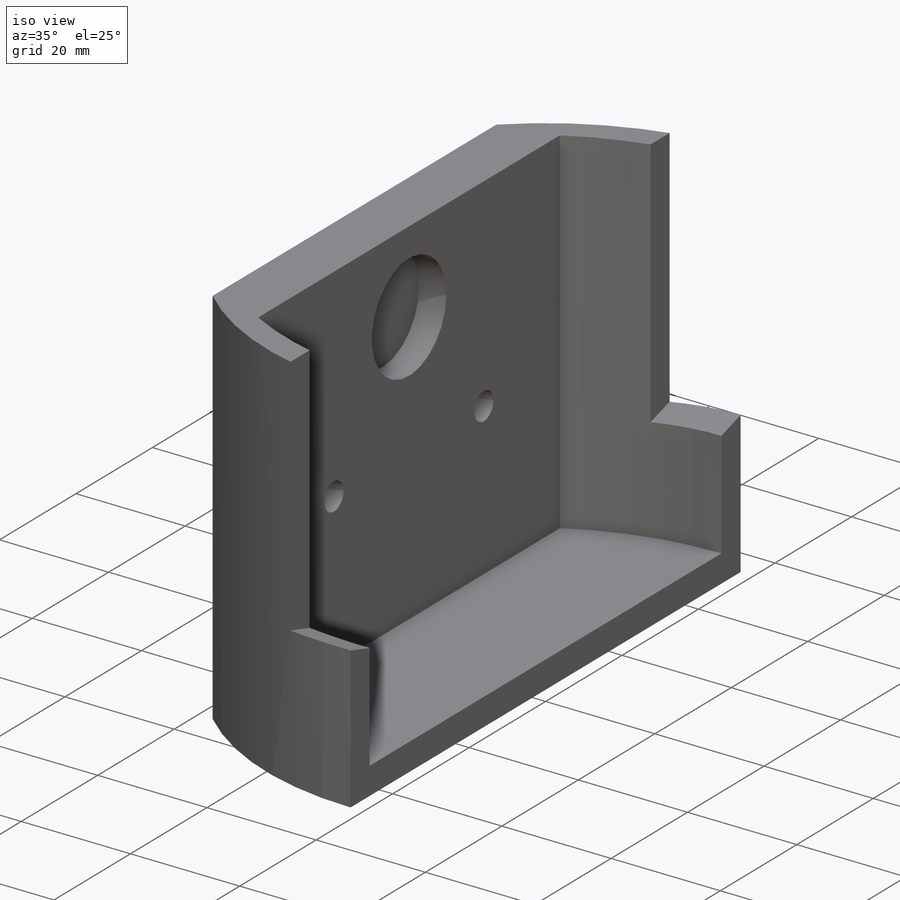
[diagram: iso view]
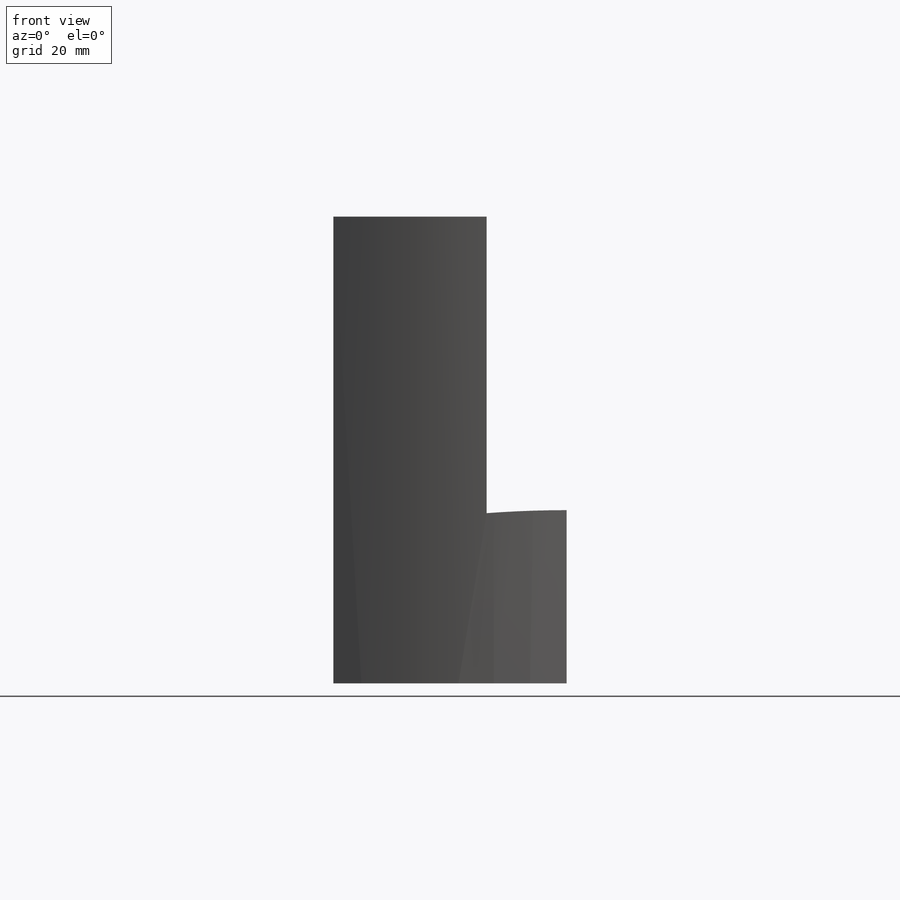
[diagram: front view]
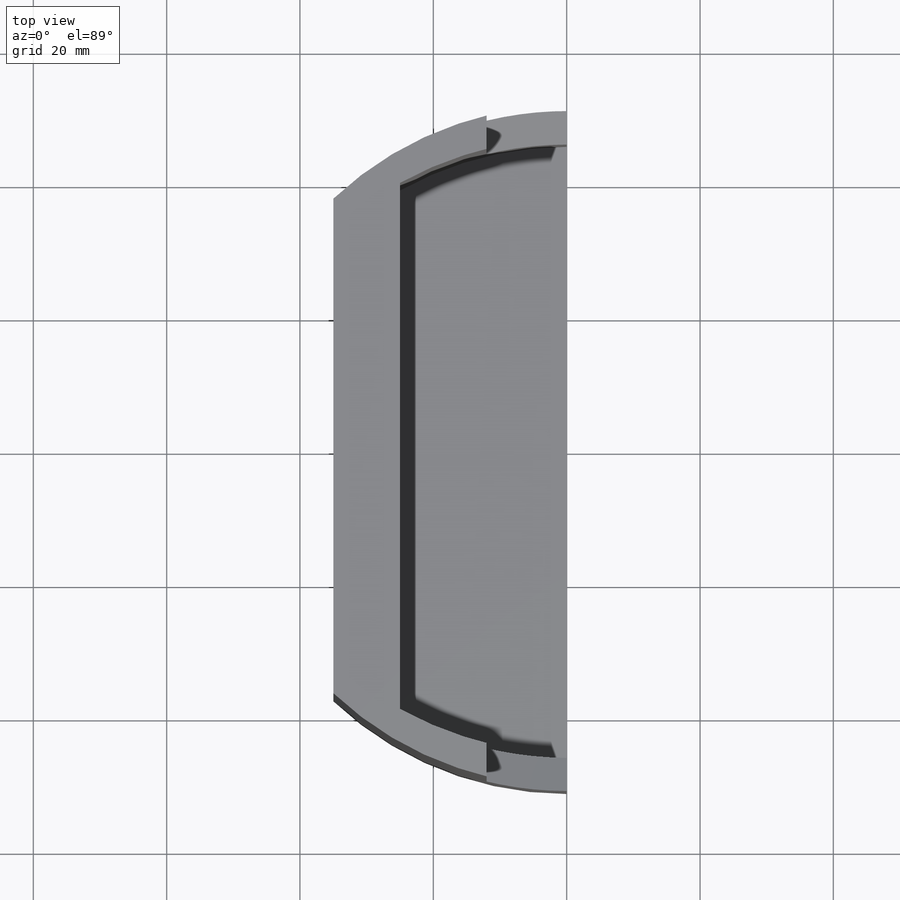
[diagram: top view]
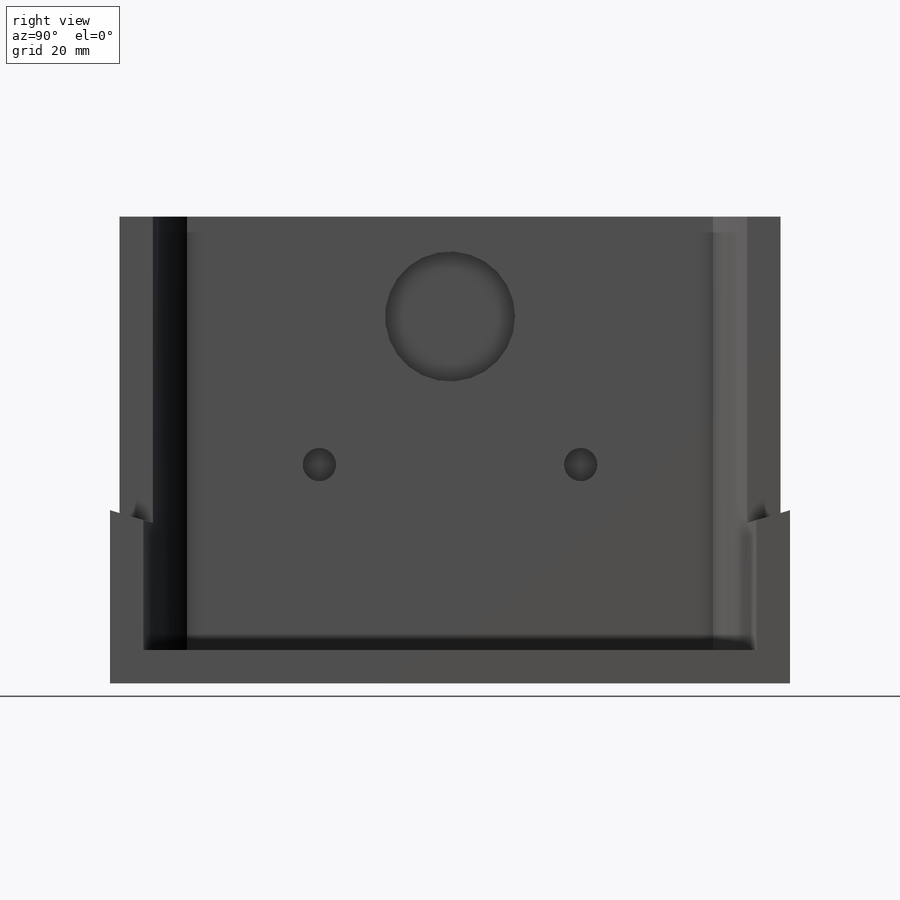
[diagram: right view]
SOLIDWORKS PART (.sldprt)
format: sldprt  version: not decoded by parser v0  size: 295,424 bytes
history: native  units: mm
features: sketch x5, plane x3, cut_extrude x3, extrude x2, material x1 (+9 scaffold rows collapsed)
feature tree (23):
  scaffold x9  (default folders/planes/origin — collapsed)
  material  "Matériau <non spécifié>"
  plane  "Plan de face"
  plane  "Plan de dessus"
  plane  "Plan de droite"
  sketch  "Esquisse1"  dims[c1.D6=102.0mm c1.D16=51.0mm c1.D17=51.0mm c1.D15=51.0mm c1.D1=30.0mm c1.D2=90.0mm c1.D3=10.0mm c1.D4=10.0mm c1.D5=20.0mm c2.D1=10.0mm c2.D2=84.5816mm c3.D1=5.0mm c3.D2=72.0mm c3.D3=80.0mm c3.D4=10.0mm c3.D5=5.0mm c3.D7=5.0mm c3.D8=5.0mm c3.D9=~4.253258mm c3.D10=~93.57168mm c4.D9=5.0mm c4.D10=5.0mm c4.D11=100.0mm c4.D12=10.0mm c4.D13=~110.837164mm c5.D12=39.2mm c5.D13=25.0mm c5.D14=25.0mm c5.D15=~77.005474mm c6.D15=0.442deg c7.D15=~39.452222mm c7.D18=~11.124784mm c8.D15=~39.452222mm c8.D2=10.0mm]
  extrude  "Boss.-Extru.7"  Depth=70mm
  sketch  "Esquisse2"  dims[D1=35.0mm]
  extrude  "Boss.-Extru.8"  Depth=5mm
  sketch  "Esquisse3"  dims[c1.D1=300.0mm c1.D3=5.0mm c1.D4=167.0mm c1.D2=23.5mm c2.D3=~14.370248mm c2.D4=8.0mm c2.D5=~33.598492mm c2.D2=39.2mm c3.D5=~11.749794mm c3.D6=27.79mm]
  cut_extrude  "Enlèv. mat.-Extru.1"  Depth=5mm
  sketch  "Esquisse5"  dims[c1.D1=240.0mm c1.D2=120.0mm c1.D3=142.0mm c1.D7=167.0mm c1.D8=120.0mm c1.D9=114.0mm c1.D12=167.0mm c2.D2=167.0mm c3.D2=70.0deg c3.D3=6.0mm c3.D4=22.0mm c3.D5=6.0mm c4.D2=6.0mm c4.D3=60.0mm c4.D4=22.0mm c5.D4=10.0deg c5.D5=22.0mm c6.D5=10.0deg c6.D6=~18.021345mm c7.D6=70.0deg c7.D8=~137.658345mm c7.D9=~161.220346mm c7.D10=~11.749794mm c7.D11=~11.810651mm c7.D12=1.0mm c7.D13=~126.838066mm c8.D12=47.0mm c8.D2=28.0mm c8.D3=10.0mm c8.D4=~16.497778mm c9.D4=~115.478164deg c9.D5=130.0mm c9.D3=37.0mm c9.D2=~32.20732mm c10.D2=~115.478164deg c10.D3=60.0mm c10.D4=18.0mm]
  cut_extrude  "Enlèv. mat.-Extru.2"  Depth=12mm
  sketch  "Esquisse6"  dims[c1.D1=~8.552059mm c1.D2=19.5mm c2.D1=50.0mm]
  cut_extrude  "Enlèv. mat.-Extru.3"  Depth=5mm
decode coverage: 10 of 10 modeling features carry decoded parameters
note: ~ marks probable driven/reference dimensions
note: suppression state not decoded; provenance and decode notes live in map.json
